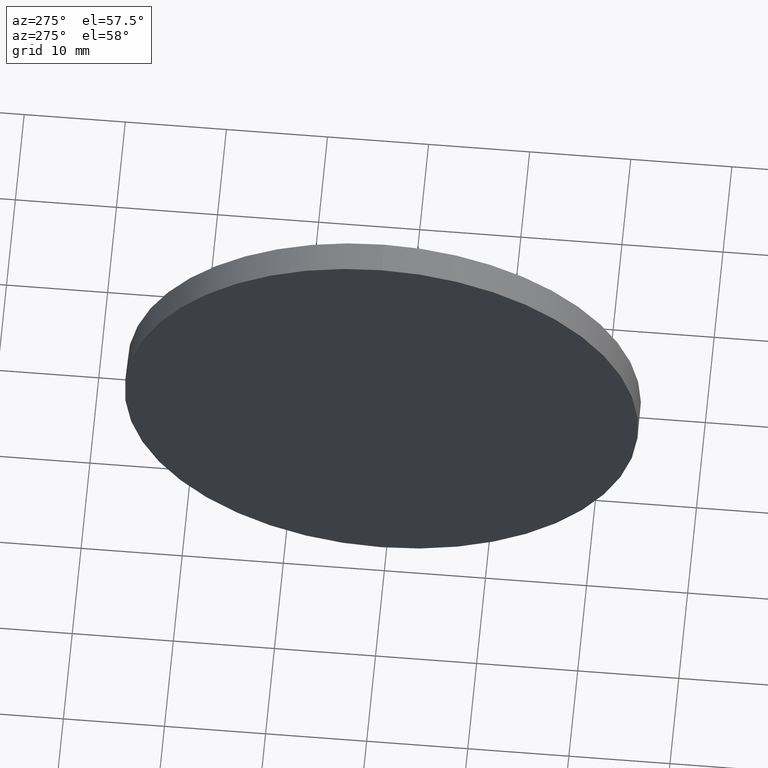
[diagram: clean part render]
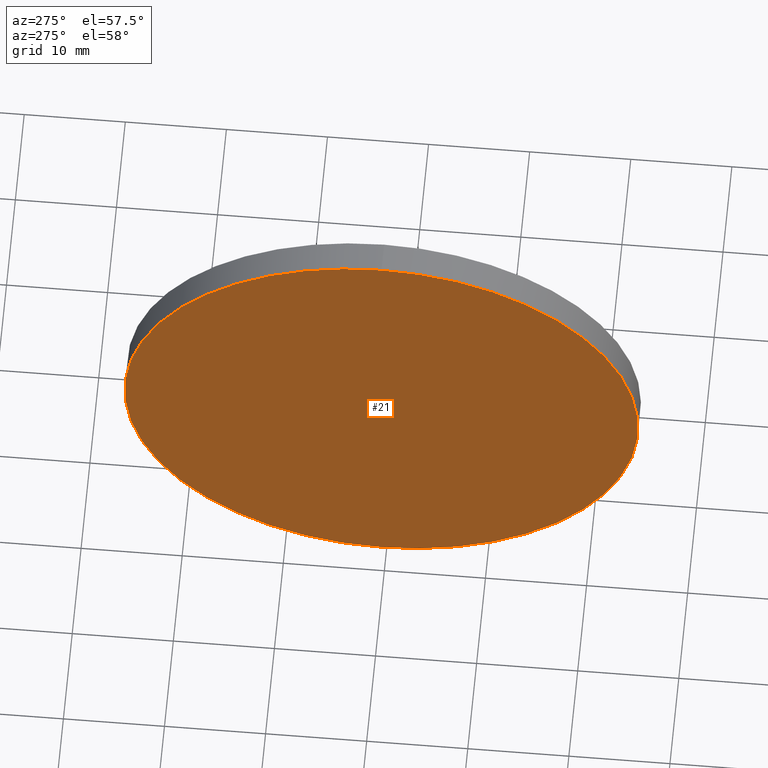
[diagram: same view with one face highlighted and labeled with its STEP entity id]
A machine part, auxiliary view. The second image highlights one B-rep face of the part: STEP entity #21.
In plain terms, the highlighted planar face has unit normal (1, 0, 0).
Its self-contained STEP definition (entity closure, byte-faithful):
#2 = CARTESIAN_POINT ( 'NONE',  ( 232.0208200792423800, 130.4671098528243900, 0.0000000000000000000 ) ) ;
#4 = DIRECTION ( 'NONE',  ( -1.000000000000000000, -0.0000000000000000000, -0.0000000000000000000 ) ) ;
#16 = DIRECTION ( 'NONE',  ( -1.000000000000000000, -0.0000000000000000000, -0.0000000000000000000 ) ) ;
#17 = FACE_OUTER_BOUND ( 'NONE', #104, .T. ) ;
#18 = AXIS2_PLACEMENT_3D ( 'NONE', #2, #16, #93 ) ;
#21 = ADVANCED_FACE ( 'NONE', ( #17 ), #159, .F. ) ;
#32 = DIRECTION ( 'NONE',  ( 0.0000000000000000000, 0.0000000000000000000, 1.000000000000000000 ) ) ;
#37 = CIRCLE ( 'NONE', #49, 25.40000000000000600 ) ;
#40 = DIRECTION ( 'NONE',  ( 1.000000000000000000, 0.0000000000000000000, 0.0000000000000000000 ) ) ;
#49 = AXIS2_PLACEMENT_3D ( 'NONE', #79, #4, #32 ) ;
#56 = DIRECTION ( 'NONE',  ( 0.0000000000000000000, 0.0000000000000000000, -1.000000000000000000 ) ) ;
#73 = ORIENTED_EDGE ( 'NONE', *, *, #84, .T. ) ;
#79 = CARTESIAN_POINT ( 'NONE',  ( 232.0208200792423800, 130.4671098528243900, 0.0000000000000000000 ) ) ;
#84 = EDGE_CURVE ( 'NONE', #152, #103, #127, .T. ) ;
#93 = DIRECTION ( 'NONE',  ( 0.0000000000000000000, 0.0000000000000000000, 1.000000000000000000 ) ) ;
#103 = VERTEX_POINT ( 'NONE', #138 ) ;
#104 = EDGE_LOOP ( 'NONE', ( #73, #118 ) ) ;
#118 = ORIENTED_EDGE ( 'NONE', *, *, #170, .T. ) ;
#120 = AXIS2_PLACEMENT_3D ( 'NONE', #135, #40, #56 ) ;
#127 = CIRCLE ( 'NONE', #18, 25.40000000000000600 ) ;
#135 = CARTESIAN_POINT ( 'NONE',  ( 232.0208200792423800, 130.4671098528243900, 0.0000000000000000000 ) ) ;
#136 = CARTESIAN_POINT ( 'NONE',  ( 232.0208200792423800, 130.4671098528243900, 25.40000000000000600 ) ) ;
#138 = CARTESIAN_POINT ( 'NONE',  ( 232.0208200792423800, 130.4671098528243900, -25.40000000000000600 ) ) ;
#152 = VERTEX_POINT ( 'NONE', #136 ) ;
#159 = PLANE ( 'NONE',  #120 ) ;
#170 = EDGE_CURVE ( 'NONE', #103, #152, #37, .T. ) ;